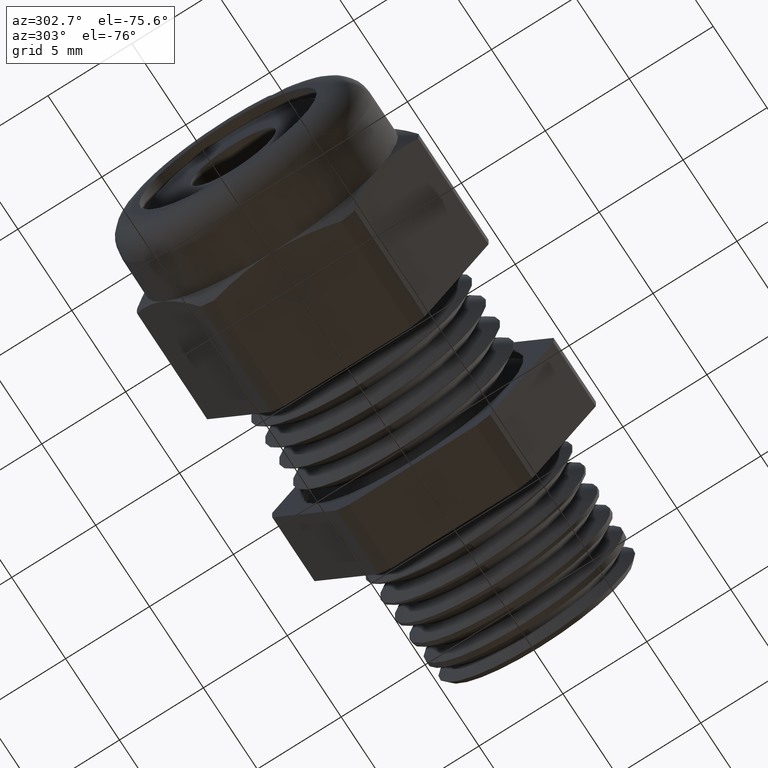
[diagram: clean part render]
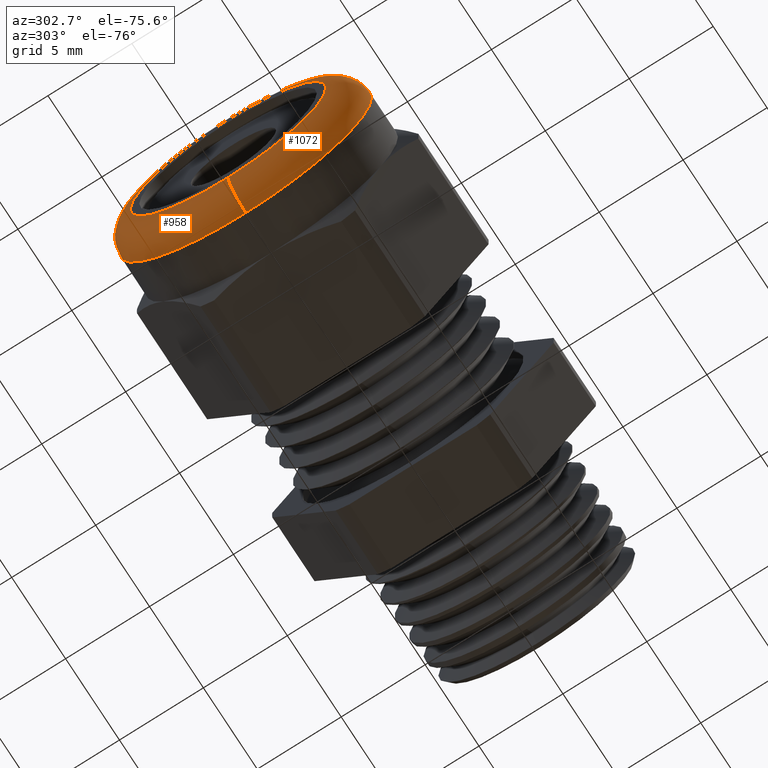
[diagram: same view with one multi-face feature highlighted, each face labeled with its STEP entity id]
A machine part, auxiliary view. The highlighted faces form ONE feature: a constant-radius fillet chain: 2 tangent blend faces with common blend radius 1.6612 mm. The faces share edges in the B-rep.
Their STEP definitions:
[1] entity #958 (Torus):
#922 = EDGE_CURVE ( 'NONE', #939, #1106, #2516, .T. ) ;
#929 = EDGE_CURVE ( 'NONE', #944, #934, #2560, .T. ) ;
#930 = ORIENTED_EDGE ( 'NONE', *, *, #935, .F. ) ;
#931 = ORIENTED_EDGE ( 'NONE', *, *, #929, .T. ) ;
#934 = VERTEX_POINT ( 'NONE', #2550 ) ;
#935 = EDGE_CURVE ( 'NONE', #1106, #934, #2549, .T. ) ;
#939 = VERTEX_POINT ( 'NONE', #2542 ) ;
#944 = VERTEX_POINT ( 'NONE', #2594 ) ;
#958 = ADVANCED_FACE ( 'NONE', ( #2572 ), #2571, .T. ) ;
#965 = EDGE_CURVE ( 'NONE', #944, #939, #2609, .T. ) ;
#967 = ORIENTED_EDGE ( 'NONE', *, *, #965, .F. ) ;
#969 = EDGE_LOOP ( 'NONE', ( #967, #931, #930, #1111 ) ) ;
#1106 = VERTEX_POINT ( 'NONE', #2864 ) ;
#1111 = ORIENTED_EDGE ( 'NONE', *, *, #922, .F. ) ;
#2512 = DIRECTION ( 'NONE',  ( 0.0000000000000000000, 0.0000000000000000000, -1.000000000000000000 ) ) ;
#2513 = DIRECTION ( 'NONE',  ( 0.0000000000000000000, -1.000000000000000000, 0.0000000000000000000 ) ) ;
#2514 = CARTESIAN_POINT ( 'NONE',  ( -0.7646000000000000600, 0.0000000000000000000, -0.2295999999999995500 ) ) ;
#2515 = AXIS2_PLACEMENT_3D ( 'NONE', #2514, #2513, #2512 ) ;
#2516 = CIRCLE ( 'NONE', #2515, 0.06540000000000004100 ) ;
#2542 = CARTESIAN_POINT ( 'NONE',  ( -0.8300000000000001800, 0.0000000000000000000, -0.2295999999999995500 ) ) ;
#2545 = DIRECTION ( 'NONE',  ( 0.0000000000000000000, 0.0000000000000000000, -1.000000000000000000 ) ) ;
#2546 = DIRECTION ( 'NONE',  ( 1.000000000000000000, 0.0000000000000000000, 0.0000000000000000000 ) ) ;
#2547 = CARTESIAN_POINT ( 'NONE',  ( -0.7646000000000000600, 0.0000000000000000000, 0.0000000000000000000 ) ) ;
#2548 = AXIS2_PLACEMENT_3D ( 'NONE', #2547, #2546, #2545 ) ;
#2549 = CIRCLE ( 'NONE', #2548, 0.2949999999999996000 ) ;
#2550 = CARTESIAN_POINT ( 'NONE',  ( -0.7646000000000000600, 0.0000000000000000000, 0.2949999999999996000 ) ) ;
#2556 = DIRECTION ( 'NONE',  ( 0.0000000000000000000, 1.224646799147352700E-016, 1.000000000000000000 ) ) ;
#2557 = DIRECTION ( 'NONE',  ( 0.0000000000000000000, 1.000000000000000000, -1.224646799147353200E-016 ) ) ;
#2558 = CARTESIAN_POINT ( 'NONE',  ( -0.7646000000000000600, 2.811789050842317600E-017, 0.2295999999999995500 ) ) ;
#2559 = AXIS2_PLACEMENT_3D ( 'NONE', #2558, #2557, #2556 ) ;
#2560 = CIRCLE ( 'NONE', #2559, 0.06540000000000004100 ) ;
#2571 = TOROIDAL_SURFACE ( 'NONE', #2635, 0.2295999999999995500, 0.06540000000000002800 ) ;
#2572 = FACE_OUTER_BOUND ( 'NONE', #969, .T. ) ;
#2594 = CARTESIAN_POINT ( 'NONE',  ( -0.8300000000000001800, 3.212248554163501700E-017, 0.2295999999999995500 ) ) ;
#2606 = DIRECTION ( 'NONE',  ( 0.0000000000000000000, 0.0000000000000000000, -1.000000000000000000 ) ) ;
#2607 = DIRECTION ( 'NONE',  ( -1.000000000000000000, 0.0000000000000000000, 0.0000000000000000000 ) ) ;
#2608 = AXIS2_PLACEMENT_3D ( 'NONE', #2613, #2607, #2606 ) ;
#2609 = CIRCLE ( 'NONE', #2608, 0.2295999999999995500 ) ;
#2613 = CARTESIAN_POINT ( 'NONE',  ( -0.8300000000000001800, 0.0000000000000000000, 0.0000000000000000000 ) ) ;
#2631 = DIRECTION ( 'NONE',  ( 0.0000000000000000000, 0.0000000000000000000, -1.000000000000000000 ) ) ;
#2632 = DIRECTION ( 'NONE',  ( 1.000000000000000000, 0.0000000000000000000, 0.0000000000000000000 ) ) ;
#2633 = CARTESIAN_POINT ( 'NONE',  ( -0.7646000000000000600, 0.0000000000000000000, 0.0000000000000000000 ) ) ;
#2635 = AXIS2_PLACEMENT_3D ( 'NONE', #2633, #2632, #2631 ) ;
#2864 = CARTESIAN_POINT ( 'NONE',  ( -0.7646000000000000600, 3.612708057484686400E-017, -0.2949999999999996000 ) ) ;
[2] entity #1072 (Torus):
#71 = CIRCLE ( 'NONE', #131, 0.2949999999999996000 ) ;
#128 = DIRECTION ( 'NONE',  ( 0.0000000000000000000, 0.0000000000000000000, -1.000000000000000000 ) ) ;
#129 = DIRECTION ( 'NONE',  ( 1.000000000000000000, 0.0000000000000000000, 0.0000000000000000000 ) ) ;
#130 = CARTESIAN_POINT ( 'NONE',  ( -0.7646000000000000600, 0.0000000000000000000, 0.0000000000000000000 ) ) ;
#131 = AXIS2_PLACEMENT_3D ( 'NONE', #130, #129, #128 ) ;
#682 = EDGE_CURVE ( 'NONE', #939, #944, #2128, .T. ) ;
#922 = EDGE_CURVE ( 'NONE', #939, #1106, #2516, .T. ) ;
#929 = EDGE_CURVE ( 'NONE', #944, #934, #2560, .T. ) ;
#934 = VERTEX_POINT ( 'NONE', #2550 ) ;
#939 = VERTEX_POINT ( 'NONE', #2542 ) ;
#944 = VERTEX_POINT ( 'NONE', #2594 ) ;
#1072 = ADVANCED_FACE ( 'NONE', ( #2836 ), #2835, .T. ) ;
#1074 = EDGE_LOOP ( 'NONE', ( #1425, #1410, #1469, #1415 ) ) ;
#1106 = VERTEX_POINT ( 'NONE', #2864 ) ;
#1410 = ORIENTED_EDGE ( 'NONE', *, *, #682, .F. ) ;
#1415 = ORIENTED_EDGE ( 'NONE', *, *, #1523, .F. ) ;
#1425 = ORIENTED_EDGE ( 'NONE', *, *, #929, .F. ) ;
#1469 = ORIENTED_EDGE ( 'NONE', *, *, #922, .T. ) ;
#1523 = EDGE_CURVE ( 'NONE', #934, #1106, #71, .T. ) ;
#2124 = DIRECTION ( 'NONE',  ( 0.0000000000000000000, 0.0000000000000000000, -1.000000000000000000 ) ) ;
#2125 = DIRECTION ( 'NONE',  ( -1.000000000000000000, 0.0000000000000000000, 0.0000000000000000000 ) ) ;
#2126 = CARTESIAN_POINT ( 'NONE',  ( -0.8300000000000001800, 0.0000000000000000000, 0.0000000000000000000 ) ) ;
#2127 = AXIS2_PLACEMENT_3D ( 'NONE', #2126, #2125, #2124 ) ;
#2128 = CIRCLE ( 'NONE', #2127, 0.2295999999999995500 ) ;
#2512 = DIRECTION ( 'NONE',  ( 0.0000000000000000000, 0.0000000000000000000, -1.000000000000000000 ) ) ;
#2513 = DIRECTION ( 'NONE',  ( 0.0000000000000000000, -1.000000000000000000, 0.0000000000000000000 ) ) ;
#2514 = CARTESIAN_POINT ( 'NONE',  ( -0.7646000000000000600, 0.0000000000000000000, -0.2295999999999995500 ) ) ;
#2515 = AXIS2_PLACEMENT_3D ( 'NONE', #2514, #2513, #2512 ) ;
#2516 = CIRCLE ( 'NONE', #2515, 0.06540000000000004100 ) ;
#2542 = CARTESIAN_POINT ( 'NONE',  ( -0.8300000000000001800, 0.0000000000000000000, -0.2295999999999995500 ) ) ;
#2550 = CARTESIAN_POINT ( 'NONE',  ( -0.7646000000000000600, 0.0000000000000000000, 0.2949999999999996000 ) ) ;
#2556 = DIRECTION ( 'NONE',  ( 0.0000000000000000000, 1.224646799147352700E-016, 1.000000000000000000 ) ) ;
#2557 = DIRECTION ( 'NONE',  ( 0.0000000000000000000, 1.000000000000000000, -1.224646799147353200E-016 ) ) ;
#2558 = CARTESIAN_POINT ( 'NONE',  ( -0.7646000000000000600, 2.811789050842317600E-017, 0.2295999999999995500 ) ) ;
#2559 = AXIS2_PLACEMENT_3D ( 'NONE', #2558, #2557, #2556 ) ;
#2560 = CIRCLE ( 'NONE', #2559, 0.06540000000000004100 ) ;
#2594 = CARTESIAN_POINT ( 'NONE',  ( -0.8300000000000001800, 3.212248554163501700E-017, 0.2295999999999995500 ) ) ;
#2831 = DIRECTION ( 'NONE',  ( 0.0000000000000000000, 0.0000000000000000000, -1.000000000000000000 ) ) ;
#2832 = DIRECTION ( 'NONE',  ( 1.000000000000000000, 0.0000000000000000000, 0.0000000000000000000 ) ) ;
#2833 = CARTESIAN_POINT ( 'NONE',  ( -0.7646000000000000600, 0.0000000000000000000, 0.0000000000000000000 ) ) ;
#2834 = AXIS2_PLACEMENT_3D ( 'NONE', #2833, #2832, #2831 ) ;
#2835 = TOROIDAL_SURFACE ( 'NONE', #2834, 0.2295999999999995500, 0.06540000000000002800 ) ;
#2836 = FACE_OUTER_BOUND ( 'NONE', #1074, .T. ) ;
#2864 = CARTESIAN_POINT ( 'NONE',  ( -0.7646000000000000600, 3.612708057484686400E-017, -0.2949999999999996000 ) ) ;